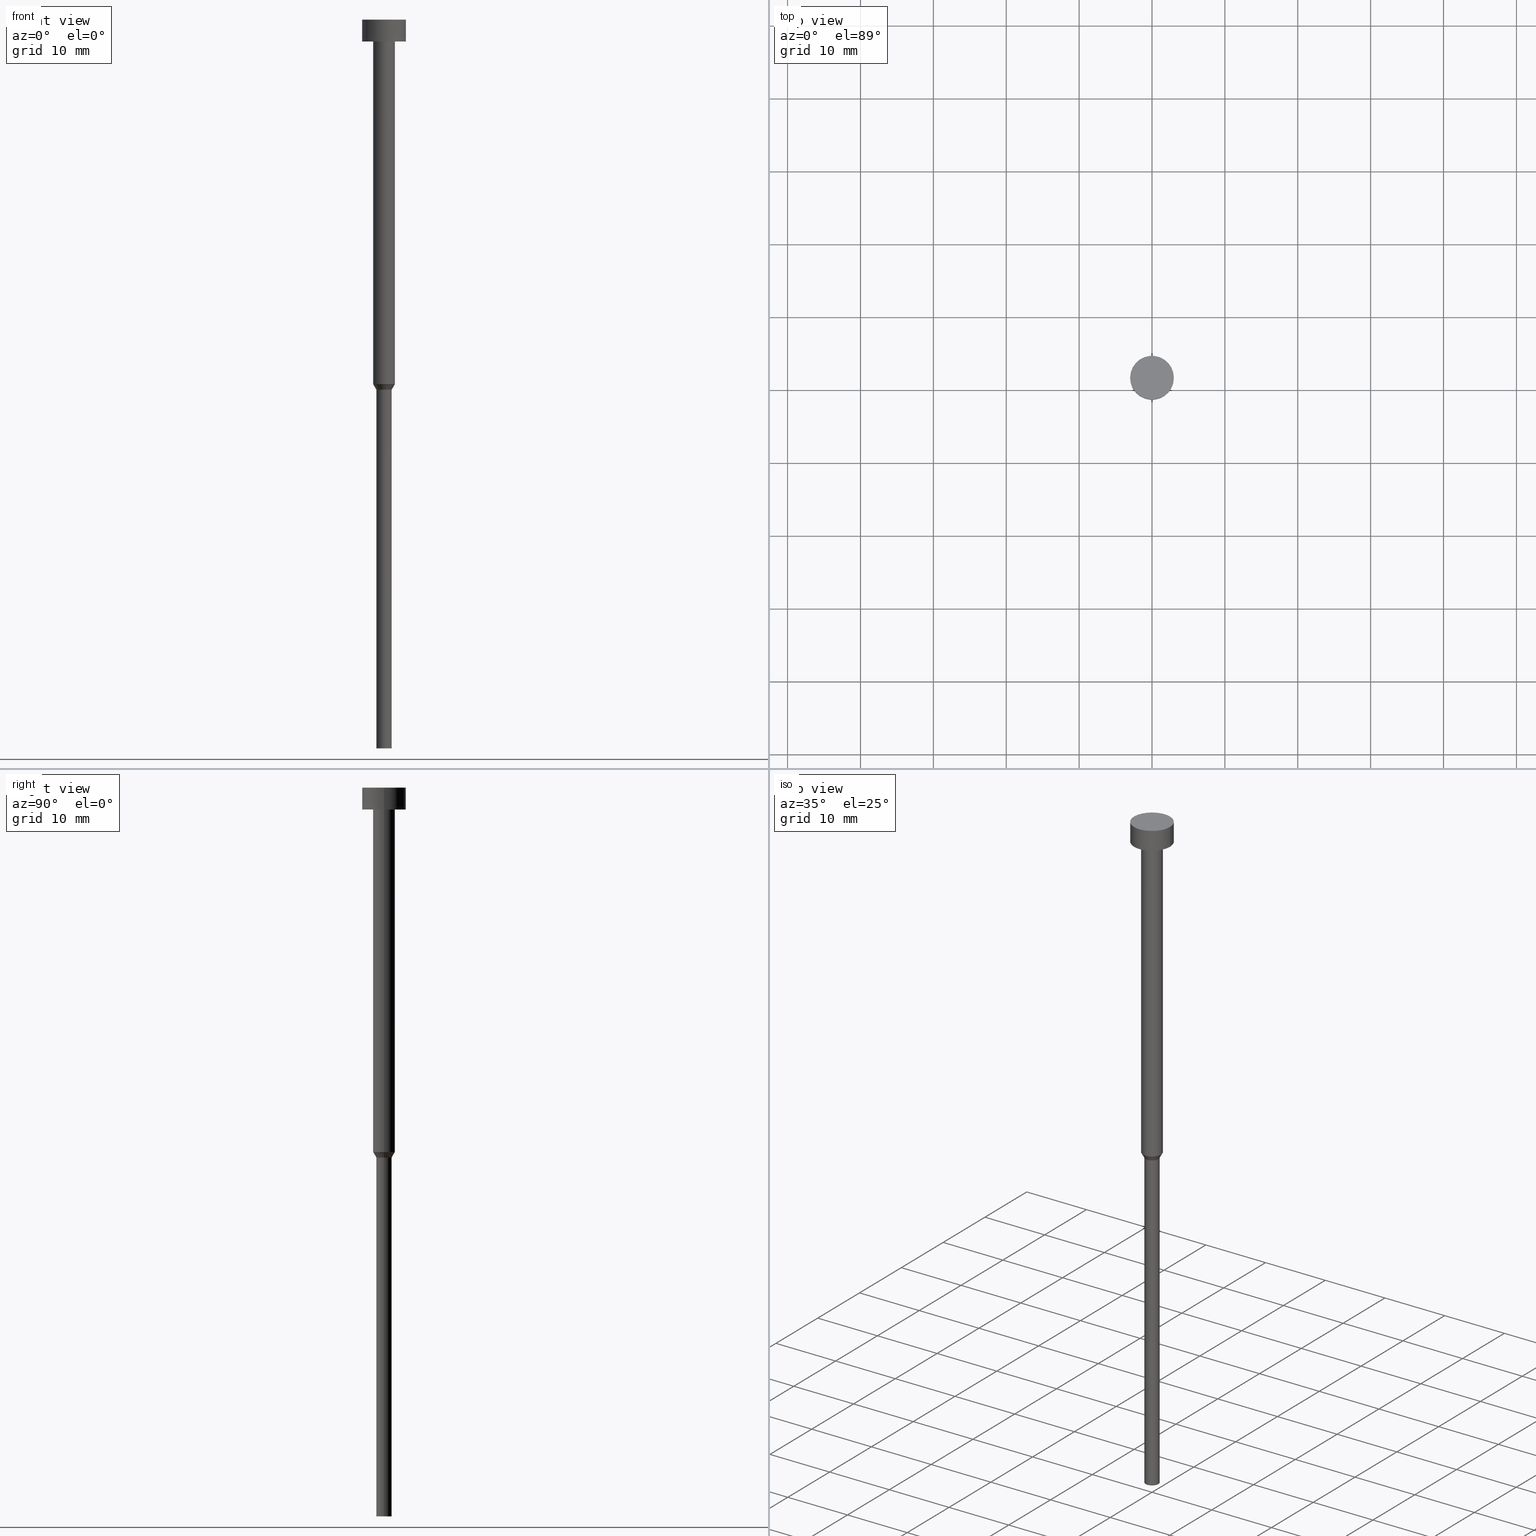
[diagram: canonical four-view strip — front | top / right | iso, engineering-drawing reading convention]
A machine part, canonical four-view strip (front | top / right | iso — engineering-drawing reading convention). The complete STEP part file that produces these views, byte-faithful:
ISO-10303-21;
HEADER;
FILE_DESCRIPTION (( 'STEP AP203' ),
    '1' );
FILE_NAME ('f0ca.STEP',
    '2023-02-13T10:55:51',
    ( '' ),
    ( '' ),
    'SwSTEP 2.0',
    'SolidWorks 2019',
    '' );
FILE_SCHEMA (( 'CONFIG_CONTROL_DESIGN' ));
ENDSEC;

DATA;
#1 = VERTEX_POINT ( 'NONE', #241 ) ;
#2 = CARTESIAN_POINT ( 'NONE',  ( 0.000000000000000000, 0.000000000000000000, -3.000000000000000888 ) ) ;
#3 = CARTESIAN_POINT ( 'NONE',  ( 1.500000000000000000, 0.000000000000000000, -50.00000000000000000 ) ) ;
#4 = APPROVAL ( #25, 'NEUR�EN�' ) ;
#5 = FACE_OUTER_BOUND ( 'NONE', #85, .T. ) ;
#6 = VERTEX_POINT ( 'NONE', #100 ) ;
#7 = DIRECTION ( 'NONE',  ( 0.000000000000000000, 0.000000000000000000, 1.000000000000000000 ) ) ;
#8 = DIRECTION ( 'NONE',  ( -1.000000000000000000, 0.000000000000000000, -0.000000000000000000 ) ) ;
#9 = ORIENTED_EDGE ( 'NONE', *, *, #312, .T. ) ;
#10 = DIRECTION ( 'NONE',  ( 1.000000000000000000, 0.000000000000000000, 0.000000000000000000 ) ) ;
#11 = EDGE_CURVE ( 'NONE', #147, #13, #280, .T. ) ;
#12 = PRODUCT_DEFINITION_FORMATION_WITH_SPECIFIED_SOURCE ( 'LIBOVOLN�', '', #29, .NOT_KNOWN. ) ;
#13 = VERTEX_POINT ( 'NONE', #348 ) ;
#14 = CARTESIAN_POINT ( 'NONE',  ( 0.000000000000000000, 0.000000000000000000, -50.00000000000000000 ) ) ;
#15 = MECHANICAL_CONTEXT ( 'NONE', #95, 'mechanical' ) ;
#16 = CC_DESIGN_DATE_AND_TIME_ASSIGNMENT ( #86, #158, ( #61 ) ) ;
#17 = DIRECTION ( 'NONE',  ( 1.000000000000000000, 0.000000000000000000, 0.000000000000000000 ) ) ;
#18 = DIRECTION ( 'NONE',  ( -0.000000000000000000, -0.000000000000000000, 1.000000000000000000 ) ) ;
#19 = DIRECTION ( 'NONE',  ( 1.000000000000000000, 0.000000000000000000, 0.000000000000000000 ) ) ;
#20 = EDGE_CURVE ( 'NONE', #296, #287, #129, .T. ) ;
#21 = PERSON_AND_ORGANIZATION_ROLE ( 'creator' ) ;
#22 = VECTOR ( 'NONE', #93, 1000.000000000000000 ) ;
#23 = CARTESIAN_POINT ( 'NONE',  ( 0.000000000000000000, 0.000000000000000000, -3.673940397442059868E-16 ) ) ;
#24 = ADVANCED_FACE ( 'NONE', ( #237 ), #255, .T. ) ;
#25 = APPROVAL_STATUS ( 'not_yet_approved' ) ;
#26 = AXIS2_PLACEMENT_3D ( 'NONE', #77, #200, #10 ) ;
#27 = FACE_OUTER_BOUND ( 'NONE', #60, .T. ) ;
#28 = LINE ( 'NONE', #3, #54 ) ;
#29 = PRODUCT ( 'f0ca', 'f0ca', '', ( #15 ) ) ;
#30 = EDGE_CURVE ( 'NONE', #193, #13, #260, .T. ) ;
#31 = ORIENTED_EDGE ( 'NONE', *, *, #253, .T. ) ;
#32 = AXIS2_PLACEMENT_3D ( 'NONE', #23, #184, #43 ) ;
#33 = FACE_OUTER_BOUND ( 'NONE', #96, .T. ) ;
#34 = DIRECTION ( 'NONE',  ( 0.5000000000000001110, 0.000000000000000000, 0.8660254037844385966 ) ) ;
#35 = CYLINDRICAL_SURFACE ( 'NONE', #244, 1.500000000000000000 ) ;
#36 = DIRECTION ( 'NONE',  ( -0.000000000000000000, -0.000000000000000000, 1.000000000000000000 ) ) ;
#37 = AXIS2_PLACEMENT_3D ( 'NONE', #80, #160, #19 ) ;
#38 = DIRECTION ( 'NONE',  ( -0.000000000000000000, -0.000000000000000000, 1.000000000000000000 ) ) ;
#39 = PERSON_AND_ORGANIZATION ( #315, #128 ) ;
#40 = CC_DESIGN_PERSON_AND_ORGANIZATION_ASSIGNMENT ( #49, #262, ( #12 ) ) ;
#41 = EDGE_LOOP ( 'NONE', ( #122, #141, #295, #169 ) ) ;
#42 = VERTEX_POINT ( 'NONE', #165 ) ;
#43 = DIRECTION ( 'NONE',  ( 1.000000000000000000, 0.000000000000000000, 0.000000000000000000 ) ) ;
#44 = AXIS2_PLACEMENT_3D ( 'NONE', #277, #278, #65 ) ;
#45 = CARTESIAN_POINT ( 'NONE',  ( 0.000000000000000000, 0.000000000000000000, 0.000000000000000000 ) ) ;
#46 = CC_DESIGN_DATE_AND_TIME_ASSIGNMENT ( #345, #112, ( #342 ) ) ;
#47 = APPROVAL_DATE_TIME ( #139, #4 ) ;
#48 = AXIS2_PLACEMENT_3D ( 'NONE', #121, #225, #176 ) ;
#49 = PERSON_AND_ORGANIZATION ( #315, #128 ) ;
#50 = DIRECTION ( 'NONE',  ( -0.000000000000000000, -0.000000000000000000, 1.000000000000000000 ) ) ;
#51 = CARTESIAN_POINT ( 'NONE',  ( 0.000000000000000000, 0.000000000000000000, -1.836970198721029934E-16 ) ) ;
#52 = PERSON_AND_ORGANIZATION ( #315, #128 ) ;
#53 = DIRECTION ( 'NONE',  ( -0.000000000000000000, -0.000000000000000000, 1.000000000000000000 ) ) ;
#54 = VECTOR ( 'NONE', #34, 1000.000000000000000 ) ;
#55 = ORIENTED_EDGE ( 'NONE', *, *, #304, .T. ) ;
#56 = EDGE_CURVE ( 'NONE', #287, #1, #74, .T. ) ;
#57 = ORIENTED_EDGE ( 'NONE', *, *, #304, .F. ) ;
#58 = LINE ( 'NONE', #230, #22 ) ;
#59 = AXIS2_PLACEMENT_3D ( 'NONE', #247, #197, #199 ) ;
#60 = EDGE_LOOP ( 'NONE', ( #300, #9 ) ) ;
#61 = SECURITY_CLASSIFICATION ( '', '', #215 ) ;
#62 = CARTESIAN_POINT ( 'NONE',  ( 0.000000000000000000, 0.000000000000000000, 0.000000000000000000 ) ) ;
#63 = CARTESIAN_POINT ( 'NONE',  ( 0.000000000000000000, -3.000000000000000000, -3.000000000000000888 ) ) ;
#64 = APPLICATION_PROTOCOL_DEFINITION ( 'international standard', 'config_control_design', 1994, #95 ) ;
#65 = DIRECTION ( 'NONE',  ( 1.000000000000000000, 0.000000000000000000, 0.000000000000000000 ) ) ;
#66 = DIRECTION ( 'NONE',  ( 1.000000000000000000, 0.000000000000000000, 0.000000000000000000 ) ) ;
#67 = ORIENTED_EDGE ( 'NONE', *, *, #198, .T. ) ;
#68 = AXIS2_PLACEMENT_3D ( 'NONE', #14, #38, #231 ) ;
#69 = CC_DESIGN_SECURITY_CLASSIFICATION ( #61, ( #12 ) ) ;
#70 = ADVANCED_FACE ( 'NONE', ( #271 ), #146, .T. ) ;
#71 = MANIFOLD_SOLID_BREP ( 'Rotovat1', #284 ) ;
#72 = DIRECTION ( 'NONE',  ( -0.000000000000000000, -0.000000000000000000, 1.000000000000000000 ) ) ;
#73 = DIRECTION ( 'NONE',  ( -0.000000000000000000, -0.000000000000000000, 1.000000000000000000 ) ) ;
#74 = CIRCLE ( 'NONE', #32, 3.000000000000000000 ) ;
#75 = ORIENTED_EDGE ( 'NONE', *, *, #273, .T. ) ;
#76 = CIRCLE ( 'NONE', #351, 3.000000000000000000 ) ;
#77 = CARTESIAN_POINT ( 'NONE',  ( 0.000000000000000000, 0.000000000000000000, -100.0000000000000000 ) ) ;
#78 = DATE_AND_TIME ( #341, #240 ) ;
#79 = DIRECTION ( 'NONE',  ( -0.000000000000000000, -0.000000000000000000, 1.000000000000000000 ) ) ;
#80 = CARTESIAN_POINT ( 'NONE',  ( 0.000000000000000000, 0.000000000000000000, -50.00000000000000000 ) ) ;
#81 = CALENDAR_DATE ( 2023, 13, 2 ) ;
#82 = DIRECTION ( 'NONE',  ( -0.000000000000000000, -0.000000000000000000, 1.000000000000000000 ) ) ;
#83 = AXIS2_PLACEMENT_3D ( 'NONE', #63, #330, #251 ) ;
#84 = EDGE_CURVE ( 'NONE', #101, #1, #127, .T. ) ;
#85 = EDGE_LOOP ( 'NONE', ( #229, #259, #220, #334 ) ) ;
#86 = DATE_AND_TIME ( #322, #209 ) ;
#87 = ADVANCED_FACE ( 'NONE', ( #329 ), #111, .T. ) ;
#88 = VECTOR ( 'NONE', #72, 1000.000000000000000 ) ;
#89 = ORIENTED_EDGE ( 'NONE', *, *, #152, .F. ) ;
#90 = CARTESIAN_POINT ( 'NONE',  ( -1.050000000000000044, 1.285879139104720978E-16, -50.77942286340599765 ) ) ;
#91 = EDGE_CURVE ( 'NONE', #6, #338, #269, .T. ) ;
#92 = CIRCLE ( 'NONE', #201, 1.050000000000000044 ) ;
#93 = DIRECTION ( 'NONE',  ( -0.000000000000000000, -0.000000000000000000, 1.000000000000000000 ) ) ;
#94 = EDGE_CURVE ( 'NONE', #6, #258, #58, .T. ) ;
#95 = APPLICATION_CONTEXT ( 'configuration controlled 3d designs of mechanical parts and assemblies' ) ;
#96 = EDGE_LOOP ( 'NONE', ( #291, #308 ) ) ;
#97 = CARTESIAN_POINT ( 'NONE',  ( 1.050000000000000044, 0.000000000000000000, -50.77942286340599765 ) ) ;
#98 = ORIENTED_EDGE ( 'NONE', *, *, #20, .F. ) ;
#99 = ADVANCED_BREP_SHAPE_REPRESENTATION ( 'f0ca', ( #71, #234 ), #206 ) ;
#100 = CARTESIAN_POINT ( 'NONE',  ( 1.050000000000000044, 0.000000000000000000, -100.0000000000000000 ) ) ;
#101 = VERTEX_POINT ( 'NONE', #145 ) ;
#102 = DIRECTION ( 'NONE',  ( -0.000000000000000000, -0.000000000000000000, 1.000000000000000000 ) ) ;
#103 = AXIS2_PLACEMENT_3D ( 'NONE', #305, #153, #347 ) ;
#104 = APPROVAL_PERSON_ORGANIZATION ( #267, #4, #212 ) ;
#105 = EDGE_LOOP ( 'NONE', ( #328, #119, #352, #57 ) ) ;
#106 = ORIENTED_EDGE ( 'NONE', *, *, #294, .T. ) ;
#107 = COORDINATED_UNIVERSAL_TIME_OFFSET ( 1, 0, .AHEAD. ) ;
#108 = CALENDAR_DATE ( 2023, 13, 2 ) ;
#109 = PERSON_AND_ORGANIZATION ( #315, #128 ) ;
#110 = EDGE_CURVE ( 'NONE', #338, #6, #134, .T. ) ;
#111 = CYLINDRICAL_SURFACE ( 'NONE', #185, 1.500000000000000000 ) ;
#112 = DATE_TIME_ROLE ( 'creation_date' ) ;
#113 = CIRCLE ( 'NONE', #44, 1.500000000000000000 ) ;
#114 = COORDINATED_UNIVERSAL_TIME_OFFSET ( 1, 0, .AHEAD. ) ;
#115 = ADVANCED_FACE ( 'NONE', ( #298 ), #248, .T. ) ;
#116 = DIRECTION ( 'NONE',  ( -0.000000000000000000, -0.000000000000000000, 1.000000000000000000 ) ) ;
#117 = AXIS2_PLACEMENT_3D ( 'NONE', #249, #171, #8 ) ;
#118 = APPLICATION_CONTEXT ( 'configuration controlled 3d designs of mechanical parts and assemblies' ) ;
#119 = ORIENTED_EDGE ( 'NONE', *, *, #110, .T. ) ;
#120 = FACE_BOUND ( 'NONE', #196, .T. ) ;
#121 = CARTESIAN_POINT ( 'NONE',  ( 0.000000000000000000, 0.000000000000000000, 0.000000000000000000 ) ) ;
#122 = ORIENTED_EDGE ( 'NONE', *, *, #307, .T. ) ;
#123 = AXIS2_PLACEMENT_3D ( 'NONE', #274, #116, #326 ) ;
#124 = DIRECTION ( 'NONE',  ( 1.000000000000000000, 0.000000000000000000, 0.000000000000000000 ) ) ;
#125 = AXIS2_PLACEMENT_3D ( 'NONE', #62, #36, #151 ) ;
#126 = ORIENTED_EDGE ( 'NONE', *, *, #312, .F. ) ;
#127 = LINE ( 'NONE', #283, #88 ) ;
#128 = ORGANIZATION ( 'NEUR�EN�', 'NEUR�EN�', '' ) ;
#129 = LINE ( 'NONE', #156, #299 ) ;
#130 = LINE ( 'NONE', #279, #167 ) ;
#131 = SHAPE_DEFINITION_REPRESENTATION ( #204, #99 ) ;
#132 = PERSON_AND_ORGANIZATION ( #315, #128 ) ;
#133 = DIRECTION ( 'NONE',  ( 1.000000000000000000, 0.000000000000000000, 0.000000000000000000 ) ) ;
#134 = CIRCLE ( 'NONE', #123, 1.050000000000000044 ) ;
#135 = DIRECTION ( 'NONE',  ( 1.000000000000000000, 0.000000000000000000, 0.000000000000000000 ) ) ;
#136 = ORIENTED_EDGE ( 'NONE', *, *, #84, .T. ) ;
#137 = ADVANCED_FACE ( 'NONE', ( #33 ), #301, .T. ) ;
#138 = ORIENTED_EDGE ( 'NONE', *, *, #30, .F. ) ;
#139 = DATE_AND_TIME ( #81, #180 ) ;
#140 =( NAMED_UNIT ( * ) PLANE_ANGLE_UNIT ( ) SI_UNIT ( $, .RADIAN. ) );
#141 = ORIENTED_EDGE ( 'NONE', *, *, #30, .T. ) ;
#142 = PERSON_AND_ORGANIZATION ( #315, #128 ) ;
#143 = APPROVAL_PERSON_ORGANIZATION ( #52, #191, #314 ) ;
#144 = DIRECTION ( 'NONE',  ( 1.000000000000000000, 0.000000000000000000, 0.000000000000000000 ) ) ;
#145 = CARTESIAN_POINT ( 'NONE',  ( -3.000000000000000000, 3.673940397442059868E-16, -3.000000000000000888 ) ) ;
#146 = CYLINDRICAL_SURFACE ( 'NONE', #59, 3.000000000000000000 ) ;
#147 = VERTEX_POINT ( 'NONE', #175 ) ;
#148 = ORIENTED_EDGE ( 'NONE', *, *, #152, .T. ) ;
#149 = CYLINDRICAL_SURFACE ( 'NONE', #48, 3.000000000000000000 ) ;
#150 = UNCERTAINTY_MEASURE_WITH_UNIT (LENGTH_MEASURE( 1.000000000000000082E-05 ), #214, 'distance_accuracy_value', 'NONE');
#151 = DIRECTION ( 'NONE',  ( 1.000000000000000000, 0.000000000000000000, 0.000000000000000000 ) ) ;
#152 = EDGE_CURVE ( 'NONE', #42, #355, #113, .T. ) ;
#153 = DIRECTION ( 'NONE',  ( -0.000000000000000000, -0.000000000000000000, 1.000000000000000000 ) ) ;
#154 = EDGE_LOOP ( 'NONE', ( #183, #67, #257, #89 ) ) ;
#155 = EDGE_CURVE ( 'NONE', #258, #147, #28, .T. ) ;
#156 = CARTESIAN_POINT ( 'NONE',  ( 3.000000000000000000, 0.000000000000000000, 0.000000000000000000 ) ) ;
#157 = VECTOR ( 'NONE', #79, 1000.000000000000000 ) ;
#158 = DATE_TIME_ROLE ( 'classification_date' ) ;
#159 = CARTESIAN_POINT ( 'NONE',  ( -1.050000000000000044, 1.285879139104720978E-16, -100.0000000000000000 ) ) ;
#160 = DIRECTION ( 'NONE',  ( -0.000000000000000000, -0.000000000000000000, 1.000000000000000000 ) ) ;
#161 = ADVANCED_FACE ( 'NONE', ( #120, #303 ), #227, .T. ) ;
#162 = APPROVAL_DATE_TIME ( #78, #281 ) ;
#163 = CARTESIAN_POINT ( 'NONE',  ( 3.000000000000000000, 0.000000000000000000, -3.673940397442059868E-16 ) ) ;
#164 = AXIS2_PLACEMENT_3D ( 'NONE', #2, #82, #135 ) ;
#165 = CARTESIAN_POINT ( 'NONE',  ( -1.500000000000000000, 1.836970198721029934E-16, -3.000000000000000888 ) ) ;
#166 = CARTESIAN_POINT ( 'NONE',  ( 1.500000000000000000, 0.000000000000000000, 0.000000000000000000 ) ) ;
#167 = VECTOR ( 'NONE', #309, 1000.000000000000000 ) ;
#168 = EDGE_LOOP ( 'NONE', ( #138, #55, #174, #222 ) ) ;
#169 = ORIENTED_EDGE ( 'NONE', *, *, #155, .F. ) ;
#170 = PRODUCT_RELATED_PRODUCT_CATEGORY ( 'detail', '', ( #29 ) ) ;
#171 = DIRECTION ( 'NONE',  ( 0.000000000000000000, 0.000000000000000000, -1.000000000000000000 ) ) ;
#172 = LOCAL_TIME ( 11, 55, 51.00000000000000000, #107 ) ;
#173 = ORIENTED_EDGE ( 'NONE', *, *, #307, .F. ) ;
#174 = ORIENTED_EDGE ( 'NONE', *, *, #155, .T. ) ;
#175 = CARTESIAN_POINT ( 'NONE',  ( 1.500000000000000000, 0.000000000000000000, -50.00000000000000000 ) ) ;
#176 = DIRECTION ( 'NONE',  ( 1.000000000000000000, 0.000000000000000000, 0.000000000000000000 ) ) ;
#177 = CC_DESIGN_PERSON_AND_ORGANIZATION_ASSIGNMENT ( #39, #354, ( #29 ) ) ;
#178 = AXIS2_PLACEMENT_3D ( 'NONE', #51, #187, #325 ) ;
#179 = ORIENTED_EDGE ( 'NONE', *, *, #20, .T. ) ;
#180 = LOCAL_TIME ( 11, 55, 51.00000000000000000, #265 ) ;
#181 = CARTESIAN_POINT ( 'NONE',  ( 0.000000000000000000, 0.000000000000000000, -50.00000000000000000 ) ) ;
#182 = CARTESIAN_POINT ( 'NONE',  ( 0.000000000000000000, 0.000000000000000000, 0.000000000000000000 ) ) ;
#183 = ORIENTED_EDGE ( 'NONE', *, *, #246, .F. ) ;
#184 = DIRECTION ( 'NONE',  ( -0.000000000000000000, -0.000000000000000000, 1.000000000000000000 ) ) ;
#185 = AXIS2_PLACEMENT_3D ( 'NONE', #45, #344, #337 ) ;
#186 = CC_DESIGN_APPROVAL ( #281, ( #342 ) ) ;
#187 = DIRECTION ( 'NONE',  ( 0.000000000000000000, -0.000000000000000000, 1.000000000000000000 ) ) ;
#188 = CC_DESIGN_PERSON_AND_ORGANIZATION_ASSIGNMENT ( #132, #21, ( #342 ) ) ;
#189 = COORDINATED_UNIVERSAL_TIME_OFFSET ( 1, 0, .AHEAD. ) ;
#190 = CARTESIAN_POINT ( 'NONE',  ( 0.000000000000000000, 0.000000000000000000, -3.000000000000000888 ) ) ;
#191 = APPROVAL ( #310, 'NEUR�EN�' ) ;
#192 = CALENDAR_DATE ( 2023, 13, 2 ) ;
#193 = VERTEX_POINT ( 'NONE', #90 ) ;
#194 = DIRECTION ( 'NONE',  ( 1.000000000000000000, 0.000000000000000000, 0.000000000000000000 ) ) ;
#195 = CIRCLE ( 'NONE', #208, 1.050000000000000044 ) ;
#196 = EDGE_LOOP ( 'NONE', ( #75, #148 ) ) ;
#197 = DIRECTION ( 'NONE',  ( -0.000000000000000000, -0.000000000000000000, 1.000000000000000000 ) ) ;
#198 = EDGE_CURVE ( 'NONE', #13, #147, #218, .T. ) ;
#199 = DIRECTION ( 'NONE',  ( 1.000000000000000000, 0.000000000000000000, 0.000000000000000000 ) ) ;
#200 = DIRECTION ( 'NONE',  ( -0.000000000000000000, -0.000000000000000000, 1.000000000000000000 ) ) ;
#201 = AXIS2_PLACEMENT_3D ( 'NONE', #343, #50, #266 ) ;
#202 = FACE_OUTER_BOUND ( 'NONE', #336, .T. ) ;
#203 = ORIENTED_EDGE ( 'NONE', *, *, #56, .F. ) ;
#204 = PRODUCT_DEFINITION_SHAPE ( 'NONE', 'NONE',  #342 ) ;
#205 = FACE_OUTER_BOUND ( 'NONE', #41, .T. ) ;
#206 =( GEOMETRIC_REPRESENTATION_CONTEXT ( 3 ) GLOBAL_UNCERTAINTY_ASSIGNED_CONTEXT ( ( #150 ) ) GLOBAL_UNIT_ASSIGNED_CONTEXT ( ( #214, #140, #297 ) ) REPRESENTATION_CONTEXT ( 'NONE', 'WORKASPACE' ) );
#207 = LINE ( 'NONE', #166, #157 ) ;
#208 = AXIS2_PLACEMENT_3D ( 'NONE', #213, #293, #320 ) ;
#209 = LOCAL_TIME ( 11, 55, 51.00000000000000000, #189 ) ;
#210 = ADVANCED_FACE ( 'NONE', ( #205 ), #316, .T. ) ;
#211 = CARTESIAN_POINT ( 'NONE',  ( 0.000000000000000000, 0.000000000000000000, 0.000000000000000000 ) ) ;
#212 = APPROVAL_ROLE ( '' ) ;
#213 = CARTESIAN_POINT ( 'NONE',  ( 0.000000000000000000, 0.000000000000000000, -50.77942286340599765 ) ) ;
#214 =( LENGTH_UNIT ( ) NAMED_UNIT ( * ) SI_UNIT ( .MILLI., .METRE. ) );
#215 = SECURITY_CLASSIFICATION_LEVEL ( 'unclassified' ) ;
#216 = EDGE_LOOP ( 'NONE', ( #302, #331, #179, #126 ) ) ;
#217 = ADVANCED_FACE ( 'NONE', ( #202 ), #149, .T. ) ;
#218 = CIRCLE ( 'NONE', #68, 1.500000000000000000 ) ;
#219 = DIRECTION ( 'NONE',  ( -0.000000000000000000, -0.000000000000000000, 1.000000000000000000 ) ) ;
#220 = ORIENTED_EDGE ( 'NONE', *, *, #273, .F. ) ;
#221 = CARTESIAN_POINT ( 'NONE',  ( 0.000000000000000000, 0.000000000000000000, -3.000000000000000888 ) ) ;
#222 = ORIENTED_EDGE ( 'NONE', *, *, #198, .F. ) ;
#223 = ADVANCED_FACE ( 'NONE', ( #5 ), #35, .T. ) ;
#224 = VECTOR ( 'NONE', #333, 1000.000000000000000 ) ;
#225 = DIRECTION ( 'NONE',  ( -0.000000000000000000, -0.000000000000000000, 1.000000000000000000 ) ) ;
#226 = CC_DESIGN_APPROVAL ( #4, ( #12 ) ) ;
#227 = PLANE ( 'NONE',  #83 ) ;
#228 = CARTESIAN_POINT ( 'NONE',  ( 0.000000000000000000, 0.000000000000000000, 0.000000000000000000 ) ) ;
#229 = ORIENTED_EDGE ( 'NONE', *, *, #11, .T. ) ;
#230 = CARTESIAN_POINT ( 'NONE',  ( 1.050000000000000044, 0.000000000000000000, 0.000000000000000000 ) ) ;
#231 = DIRECTION ( 'NONE',  ( 1.000000000000000000, 0.000000000000000000, 0.000000000000000000 ) ) ;
#232 = EDGE_LOOP ( 'NONE', ( #285, #272 ) ) ;
#233 = CC_DESIGN_PERSON_AND_ORGANIZATION_ASSIGNMENT ( #142, #353, ( #61 ) ) ;
#234 = AXIS2_PLACEMENT_3D ( 'NONE', #228, #7, #124 ) ;
#235 = CARTESIAN_POINT ( 'NONE',  ( -1.500000000000000000, 1.836970198721029934E-16, -50.00000000000000000 ) ) ;
#236 = FACE_OUTER_BOUND ( 'NONE', #168, .T. ) ;
#237 = FACE_OUTER_BOUND ( 'NONE', #276, .T. ) ;
#238 = ADVANCED_FACE ( 'NONE', ( #236 ), #268, .T. ) ;
#239 = AXIS2_PLACEMENT_3D ( 'NONE', #211, #335, #17 ) ;
#240 = LOCAL_TIME ( 11, 55, 51.00000000000000000, #243 ) ;
#241 = CARTESIAN_POINT ( 'NONE',  ( -3.000000000000000000, 3.673940397442059868E-16, -3.673940397442059868E-16 ) ) ;
#242 = ORIENTED_EDGE ( 'NONE', *, *, #94, .F. ) ;
#243 = COORDINATED_UNIVERSAL_TIME_OFFSET ( 1, 0, .AHEAD. ) ;
#244 = AXIS2_PLACEMENT_3D ( 'NONE', #182, #73, #66 ) ;
#245 = APPROVAL_PERSON_ORGANIZATION ( #286, #281, #292 ) ;
#246 = EDGE_CURVE ( 'NONE', #13, #42, #130, .T. ) ;
#247 = CARTESIAN_POINT ( 'NONE',  ( 0.000000000000000000, 0.000000000000000000, 0.000000000000000000 ) ) ;
#248 = CYLINDRICAL_SURFACE ( 'NONE', #125, 1.050000000000000044 ) ;
#249 = CARTESIAN_POINT ( 'NONE',  ( 0.000000000000000000, 0.000000000000000000, -100.0000000000000000 ) ) ;
#250 = DESIGN_CONTEXT ( 'detailed design', #118, 'design' ) ;
#251 = DIRECTION ( 'NONE',  ( -1.000000000000000000, 0.000000000000000000, -0.000000000000000000 ) ) ;
#252 = CIRCLE ( 'NONE', #324, 3.000000000000000000 ) ;
#253 = EDGE_CURVE ( 'NONE', #338, #193, #332, .T. ) ;
#254 = ORIENTED_EDGE ( 'NONE', *, *, #91, .T. ) ;
#255 = CYLINDRICAL_SURFACE ( 'NONE', #239, 1.050000000000000044 ) ;
#256 = DIRECTION ( 'NONE',  ( 1.000000000000000000, 0.000000000000000000, 0.000000000000000000 ) ) ;
#257 = ORIENTED_EDGE ( 'NONE', *, *, #270, .T. ) ;
#258 = VERTEX_POINT ( 'NONE', #97 ) ;
#259 = ORIENTED_EDGE ( 'NONE', *, *, #246, .T. ) ;
#260 = LINE ( 'NONE', #235, #224 ) ;
#261 = AXIS2_PLACEMENT_3D ( 'NONE', #190, #219, #133 ) ;
#262 = PERSON_AND_ORGANIZATION_ROLE ( 'design_supplier' ) ;
#263 = DIRECTION ( 'NONE',  ( -0.000000000000000000, -0.000000000000000000, 1.000000000000000000 ) ) ;
#264 = APPROVAL_STATUS ( 'not_yet_approved' ) ;
#265 = COORDINATED_UNIVERSAL_TIME_OFFSET ( 1, 0, .AHEAD. ) ;
#266 = DIRECTION ( 'NONE',  ( 1.000000000000000000, 0.000000000000000000, 0.000000000000000000 ) ) ;
#267 = PERSON_AND_ORGANIZATION ( #315, #128 ) ;
#268 = CONICAL_SURFACE ( 'NONE', #339, 1.500000000000000000, 0.5235987755982990377 ) ;
#269 = CIRCLE ( 'NONE', #26, 1.050000000000000044 ) ;
#270 = EDGE_CURVE ( 'NONE', #147, #355, #207, .T. ) ;
#271 = FACE_OUTER_BOUND ( 'NONE', #216, .T. ) ;
#272 = ORIENTED_EDGE ( 'NONE', *, *, #349, .F. ) ;
#273 = EDGE_CURVE ( 'NONE', #355, #42, #289, .T. ) ;
#274 = CARTESIAN_POINT ( 'NONE',  ( 0.000000000000000000, 0.000000000000000000, -100.0000000000000000 ) ) ;
#275 = VECTOR ( 'NONE', #102, 1000.000000000000000 ) ;
#276 = EDGE_LOOP ( 'NONE', ( #254, #31, #173, #242 ) ) ;
#277 = CARTESIAN_POINT ( 'NONE',  ( 0.000000000000000000, 0.000000000000000000, -3.000000000000000888 ) ) ;
#278 = DIRECTION ( 'NONE',  ( -0.000000000000000000, -0.000000000000000000, 1.000000000000000000 ) ) ;
#279 = CARTESIAN_POINT ( 'NONE',  ( -1.500000000000000000, 1.836970198721029934E-16, 0.000000000000000000 ) ) ;
#280 = CIRCLE ( 'NONE', #37, 1.500000000000000000 ) ;
#281 = APPROVAL ( #264, 'NEUR�EN�' ) ;
#282 = CARTESIAN_POINT ( 'NONE',  ( -1.050000000000000044, 1.285879139104720978E-16, 0.000000000000000000 ) ) ;
#283 = CARTESIAN_POINT ( 'NONE',  ( -3.000000000000000000, 3.673940397442059868E-16, 0.000000000000000000 ) ) ;
#284 = CLOSED_SHELL ( 'NONE', ( #217, #223, #210, #24, #137, #115, #238, #87, #161, #70, #327 ) ) ;
#285 = ORIENTED_EDGE ( 'NONE', *, *, #294, .F. ) ;
#286 = PERSON_AND_ORGANIZATION ( #315, #128 ) ;
#287 = VERTEX_POINT ( 'NONE', #163 ) ;
#288 = CC_DESIGN_PERSON_AND_ORGANIZATION_ASSIGNMENT ( #109, #319, ( #12 ) ) ;
#289 = CIRCLE ( 'NONE', #261, 1.500000000000000000 ) ;
#290 = CARTESIAN_POINT ( 'NONE',  ( 0.000000000000000000, 0.000000000000000000, -3.673940397442059868E-16 ) ) ;
#291 = ORIENTED_EDGE ( 'NONE', *, *, #91, .F. ) ;
#292 = APPROVAL_ROLE ( '' ) ;
#293 = DIRECTION ( 'NONE',  ( -0.000000000000000000, -0.000000000000000000, 1.000000000000000000 ) ) ;
#294 = EDGE_CURVE ( 'NONE', #296, #101, #76, .T. ) ;
#295 = ORIENTED_EDGE ( 'NONE', *, *, #11, .F. ) ;
#296 = VERTEX_POINT ( 'NONE', #346 ) ;
#297 =( NAMED_UNIT ( * ) SI_UNIT ( $, .STERADIAN. ) SOLID_ANGLE_UNIT ( ) );
#298 = FACE_OUTER_BOUND ( 'NONE', #105, .T. ) ;
#299 = VECTOR ( 'NONE', #263, 1000.000000000000000 ) ;
#300 = ORIENTED_EDGE ( 'NONE', *, *, #56, .T. ) ;
#301 = PLANE ( 'NONE',  #117 ) ;
#302 = ORIENTED_EDGE ( 'NONE', *, *, #84, .F. ) ;
#303 = FACE_OUTER_BOUND ( 'NONE', #232, .T. ) ;
#304 = EDGE_CURVE ( 'NONE', #193, #258, #92, .T. ) ;
#305 = CARTESIAN_POINT ( 'NONE',  ( 0.000000000000000000, 0.000000000000000000, -50.00000000000000000 ) ) ;
#306 = CIRCLE ( 'NONE', #164, 3.000000000000000000 ) ;
#307 = EDGE_CURVE ( 'NONE', #258, #193, #195, .T. ) ;
#308 = ORIENTED_EDGE ( 'NONE', *, *, #110, .F. ) ;
#309 = DIRECTION ( 'NONE',  ( -0.000000000000000000, -0.000000000000000000, 1.000000000000000000 ) ) ;
#310 = APPROVAL_STATUS ( 'not_yet_approved' ) ;
#311 = PLANE ( 'NONE',  #178 ) ;
#312 = EDGE_CURVE ( 'NONE', #1, #287, #252, .T. ) ;
#313 = DATE_AND_TIME ( #108, #172 ) ;
#314 = APPROVAL_ROLE ( '' ) ;
#315 = PERSON ( 'NEUR�EN�', 'NEUR�EN�', 'NEUR�EN�', ('NEUR�EN�'), ('NEUR�EN�'), ('NEUR�EN�') ) ;
#316 = CONICAL_SURFACE ( 'NONE', #103, 1.500000000000000000, 0.5235987755982990377 ) ;
#317 = APPROVAL_DATE_TIME ( #313, #191 ) ;
#318 = LOCAL_TIME ( 11, 55, 51.00000000000000000, #114 ) ;
#319 = PERSON_AND_ORGANIZATION_ROLE ( 'creator' ) ;
#320 = DIRECTION ( 'NONE',  ( 1.000000000000000000, 0.000000000000000000, 0.000000000000000000 ) ) ;
#321 = CARTESIAN_POINT ( 'NONE',  ( 1.500000000000000000, 0.000000000000000000, -3.000000000000000888 ) ) ;
#322 = CALENDAR_DATE ( 2023, 13, 2 ) ;
#323 = DIRECTION ( 'NONE',  ( -0.000000000000000000, -0.000000000000000000, 1.000000000000000000 ) ) ;
#324 = AXIS2_PLACEMENT_3D ( 'NONE', #290, #53, #144 ) ;
#325 = DIRECTION ( 'NONE',  ( 1.000000000000000000, 0.000000000000000000, 0.000000000000000000 ) ) ;
#326 = DIRECTION ( 'NONE',  ( 1.000000000000000000, 0.000000000000000000, 0.000000000000000000 ) ) ;
#327 = ADVANCED_FACE ( 'NONE', ( #27 ), #311, .T. ) ;
#328 = ORIENTED_EDGE ( 'NONE', *, *, #253, .F. ) ;
#329 = FACE_OUTER_BOUND ( 'NONE', #154, .T. ) ;
#330 = DIRECTION ( 'NONE',  ( 0.000000000000000000, 0.000000000000000000, -1.000000000000000000 ) ) ;
#331 = ORIENTED_EDGE ( 'NONE', *, *, #349, .T. ) ;
#332 = LINE ( 'NONE', #282, #275 ) ;
#333 = DIRECTION ( 'NONE',  ( -0.5000000000000001110, 6.123233995736767268E-17, 0.8660254037844385966 ) ) ;
#334 = ORIENTED_EDGE ( 'NONE', *, *, #270, .F. ) ;
#335 = DIRECTION ( 'NONE',  ( -0.000000000000000000, -0.000000000000000000, 1.000000000000000000 ) ) ;
#336 = EDGE_LOOP ( 'NONE', ( #106, #136, #203, #98 ) ) ;
#337 = DIRECTION ( 'NONE',  ( 1.000000000000000000, 0.000000000000000000, 0.000000000000000000 ) ) ;
#338 = VERTEX_POINT ( 'NONE', #159 ) ;
#339 = AXIS2_PLACEMENT_3D ( 'NONE', #181, #18, #256 ) ;
#340 = CC_DESIGN_APPROVAL ( #191, ( #61 ) ) ;
#341 = CALENDAR_DATE ( 2023, 13, 2 ) ;
#342 = PRODUCT_DEFINITION ( 'NEZN�M�', '', #12, #250 ) ;
#343 = CARTESIAN_POINT ( 'NONE',  ( 0.000000000000000000, 0.000000000000000000, -50.77942286340599765 ) ) ;
#344 = DIRECTION ( 'NONE',  ( -0.000000000000000000, -0.000000000000000000, 1.000000000000000000 ) ) ;
#345 = DATE_AND_TIME ( #192, #318 ) ;
#346 = CARTESIAN_POINT ( 'NONE',  ( 3.000000000000000000, 0.000000000000000000, -3.000000000000000888 ) ) ;
#347 = DIRECTION ( 'NONE',  ( 1.000000000000000000, 0.000000000000000000, 0.000000000000000000 ) ) ;
#348 = CARTESIAN_POINT ( 'NONE',  ( -1.500000000000000000, 1.836970198721029934E-16, -50.00000000000000000 ) ) ;
#349 = EDGE_CURVE ( 'NONE', #101, #296, #306, .T. ) ;
#350 = APPLICATION_PROTOCOL_DEFINITION ( 'international standard', 'config_control_design', 1994, #118 ) ;
#351 = AXIS2_PLACEMENT_3D ( 'NONE', #221, #323, #194 ) ;
#352 = ORIENTED_EDGE ( 'NONE', *, *, #94, .T. ) ;
#353 = PERSON_AND_ORGANIZATION_ROLE ( 'classification_officer' ) ;
#354 = PERSON_AND_ORGANIZATION_ROLE ( 'design_owner' ) ;
#355 = VERTEX_POINT ( 'NONE', #321 ) ;
ENDSEC;
END-ISO-10303-21;
